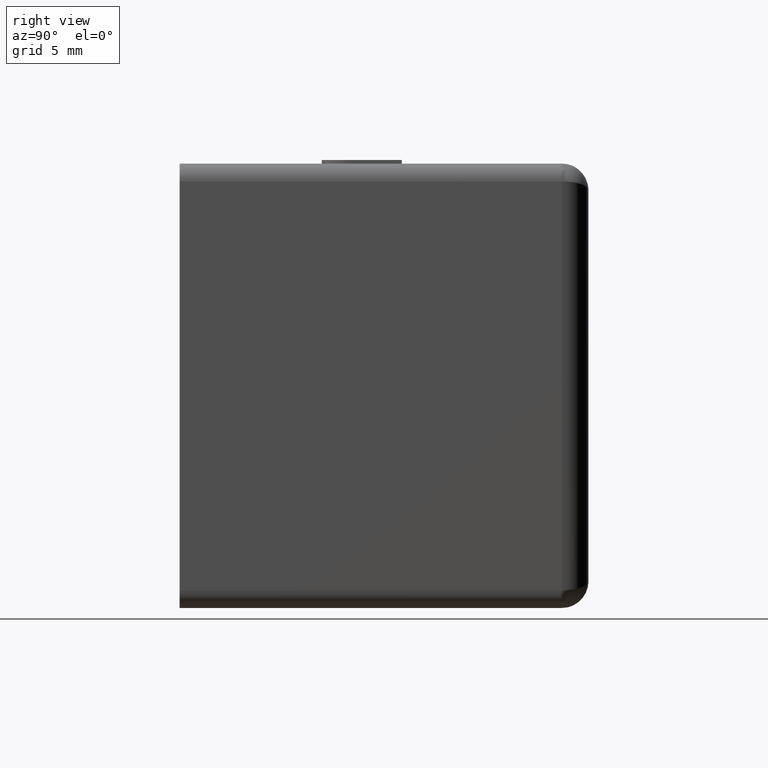
[diagram: clean part render]
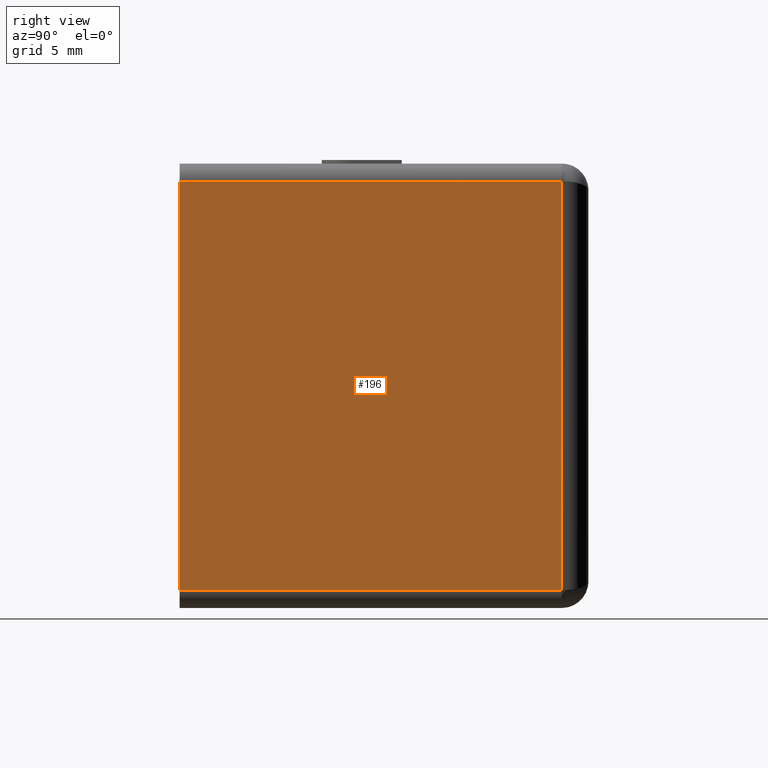
[diagram: same view with one face highlighted and labeled with its STEP entity id]
A machine part, right view. The second image highlights one B-rep face of the part: STEP entity #196.
In plain terms, the highlighted planar face has unit normal (1, -0, 0).
Its self-contained STEP definition (entity closure, byte-faithful):
#196 = ADVANCED_FACE( '', ( #508 ), #509, .T. );
#508 = FACE_OUTER_BOUND( '', #1130, .T. );
#509 = PLANE( '', #1131 );
#1130 = EDGE_LOOP( '', ( #2459, #2460, #2461, #2462 ) );
#1131 = AXIS2_PLACEMENT_3D( '', #2463, #2464, #2465 );
#2459 = ORIENTED_EDGE( '', *, *, #2966, .T. );
#2460 = ORIENTED_EDGE( '', *, *, #3153, .T. );
#2461 = ORIENTED_EDGE( '', *, *, #2968, .T. );
#2462 = ORIENTED_EDGE( '', *, *, #2886, .F. );
#2463 = CARTESIAN_POINT( '', ( 11.5000000000000, 2.00000000000000, -12.5000000000000 ) );
#2464 = DIRECTION( '', ( 1.00000000000000, -6.07153216591882E-017, 0.000000000000000 ) );
#2465 = DIRECTION( '', ( -6.07153216591882E-017, -1.00000000000000, 0.000000000000000 ) );
#2886 = EDGE_CURVE( '', #3383, #3385, #3386, .T. );
#2966 = EDGE_CURVE( '', #3383, #3522, #3524, .T. );
#2968 = EDGE_CURVE( '', #3526, #3385, #3527, .F. );
#3153 = EDGE_CURVE( '', #3522, #3526, #3805, .T. );
#3383 = VERTEX_POINT( '', #4144 );
#3385 = VERTEX_POINT( '', #4146 );
#3386 = LINE( '', #4147, #4148 );
#3522 = VERTEX_POINT( '', #4340 );
#3524 = LINE( '', #4342, #4343 );
#3526 = VERTEX_POINT( '', #4346 );
#3527 = LINE( '', #4347, #4348 );
#3805 = LINE( '', #4754, #4755 );
#4144 = CARTESIAN_POINT( '', ( 11.5000000000000, 0.000000000000000, -11.5000000000000 ) );
#4146 = CARTESIAN_POINT( '', ( 11.5000000000000, 0.000000000000000, 11.5000000000000 ) );
#4147 = CARTESIAN_POINT( '', ( 11.5000000000000, 0.000000000000000, -12.5000000000000 ) );
#4148 = VECTOR( '', #4958, 1000.00000000000 );
#4340 = CARTESIAN_POINT( '', ( 11.5000000000000, 21.5000000000000, -11.5000000000000 ) );
#4342 = CARTESIAN_POINT( '', ( 11.5000000000000, 2.00000000000000, -11.5000000000000 ) );
#4343 = VECTOR( '', #5084, 1000.00000000000 );
#4346 = CARTESIAN_POINT( '', ( 11.5000000000000, 21.5000000000000, 11.5000000000000 ) );
#4347 = CARTESIAN_POINT( '', ( 11.5000000000000, 2.00000000000000, 11.5000000000000 ) );
#4348 = VECTOR( '', #5086, 1000.00000000000 );
#4754 = CARTESIAN_POINT( '', ( 11.5000000000000, 21.5000000000000, -12.5000000000000 ) );
#4755 = VECTOR( '', #5383, 1000.00000000000 );
#4958 = DIRECTION( '', ( 4.93038065763132E-032, 0.000000000000000, 1.00000000000000 ) );
#5084 = DIRECTION( '', ( 6.07153216591882E-017, 1.00000000000000, 0.000000000000000 ) );
#5086 = DIRECTION( '', ( 6.07153216591882E-017, 1.00000000000000, 0.000000000000000 ) );
#5383 = DIRECTION( '', ( 0.000000000000000, 0.000000000000000, 1.00000000000000 ) );